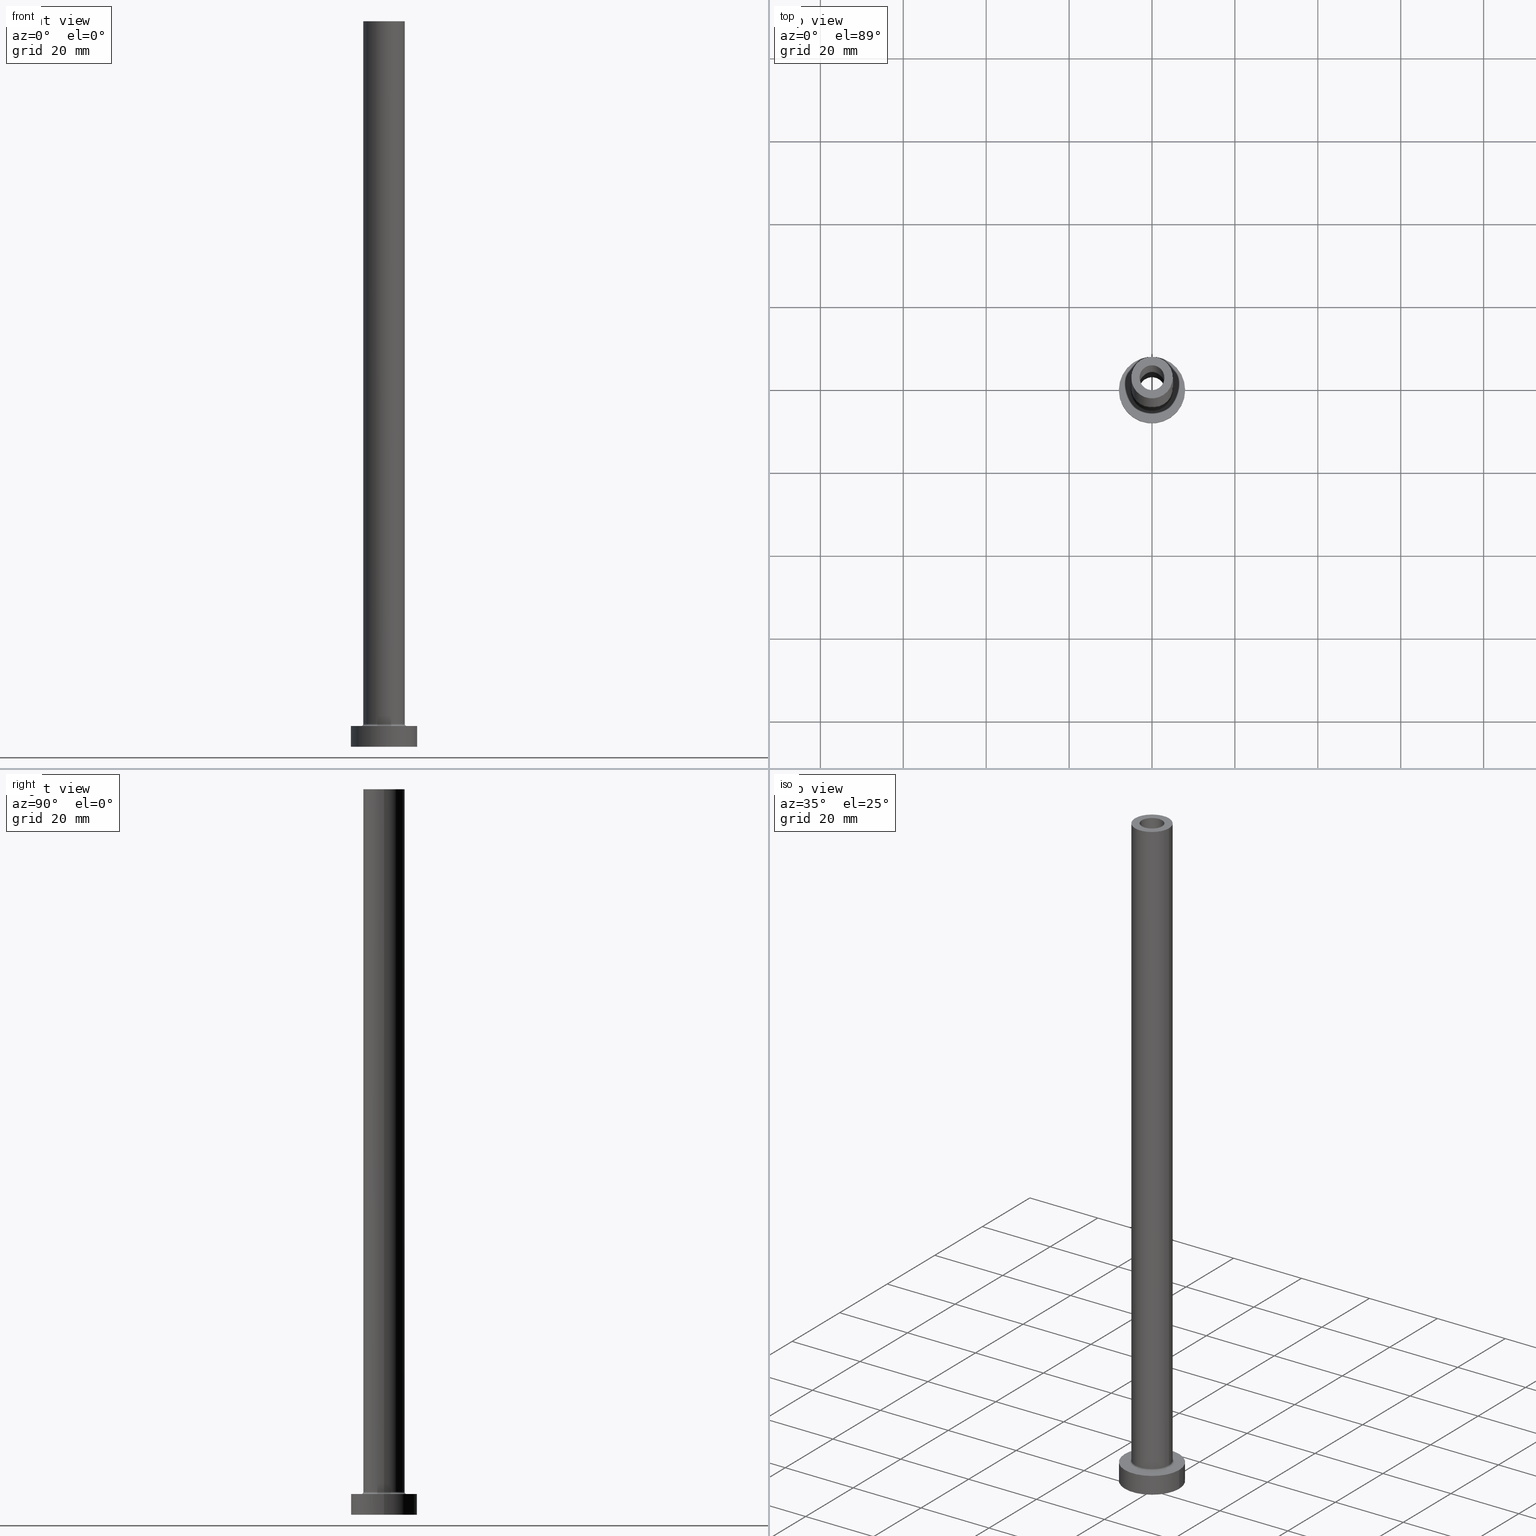
[diagram: canonical four-view strip — front | top / right | iso, engineering-drawing reading convention]
A machine part, canonical four-view strip (front | top / right | iso — engineering-drawing reading convention). The complete STEP part file that produces these views, byte-faithful:
ISO-10303-21;
HEADER;
FILE_DESCRIPTION (( 'STEP AP203' ),
    '1' );
FILE_NAME ('615d.STEP',
    '2023-02-13T15:32:14',
    ( '' ),
    ( '' ),
    'SwSTEP 2.0',
    'SolidWorks 2019',
    '' );
FILE_SCHEMA (( 'CONFIG_CONTROL_DESIGN' ));
ENDSEC;

DATA;
#1 = CIRCLE ( 'NONE', #410, 3.000000000000000444 ) ;
#2 = EDGE_CURVE ( 'NONE', #266, #255, #324, .T. ) ;
#3 = MANIFOLD_SOLID_BREP ( 'Odebrat vysunut�m4', #19 ) ;
#4 = FACE_OUTER_BOUND ( 'NONE', #61, .T. ) ;
#5 = DIRECTION ( 'NONE',  ( -0.000000000000000000, -0.000000000000000000, -1.000000000000000000 ) ) ;
#6 = COORDINATED_UNIVERSAL_TIME_OFFSET ( 1, 0, .AHEAD. ) ;
#7 = AXIS2_PLACEMENT_3D ( 'NONE', #325, #461, #214 ) ;
#8 = CARTESIAN_POINT ( 'NONE',  ( 5.500000000000000000, 0.000000000000000000, 5.000000000000002665 ) ) ;
#9 = APPROVAL_ROLE ( '' ) ;
#10 = DIRECTION ( 'NONE',  ( -1.000000000000000000, 0.000000000000000000, 0.000000000000000000 ) ) ;
#11 = FACE_BOUND ( 'NONE', #186, .T. ) ;
#12 = ORIENTED_EDGE ( 'NONE', *, *, #297, .F. ) ;
#13 = CYLINDRICAL_SURFACE ( 'NONE', #153, 8.000000000000000000 ) ;
#14 = AXIS2_PLACEMENT_3D ( 'NONE', #84, #360, #148 ) ;
#15 = DIRECTION ( 'NONE',  ( 0.000000000000000000, 0.000000000000000000, 1.000000000000000000 ) ) ;
#16 = CC_DESIGN_PERSON_AND_ORGANIZATION_ASSIGNMENT ( #256, #402, ( #303 ) ) ;
#17 = AXIS2_PLACEMENT_3D ( 'NONE', #380, #230, #383 ) ;
#18 = ORIENTED_EDGE ( 'NONE', *, *, #107, .T. ) ;
#19 = CLOSED_SHELL ( 'NONE', ( #288, #103, #131, #236, #292, #31, #340, #269, #375, #147, #459, #23, #85, #314 ) ) ;
#20 = ORIENTED_EDGE ( 'NONE', *, *, #306, .T. ) ;
#21 = CARTESIAN_POINT ( 'NONE',  ( 5.000000000000000000, 6.123233995736766282E-16, 175.0000000000000284 ) ) ;
#22 = CARTESIAN_POINT ( 'NONE',  ( 0.000000000000000000, 0.000000000000000000, 0.000000000000000000 ) ) ;
#23 = ADVANCED_FACE ( 'NONE', ( #146 ), #290, .F. ) ;
#24 = VERTEX_POINT ( 'NONE', #293 ) ;
#25 = DIRECTION ( 'NONE',  ( 0.000000000000000000, 0.000000000000000000, 1.000000000000000000 ) ) ;
#26 = EDGE_LOOP ( 'NONE', ( #192, #369, #20, #232 ) ) ;
#27 = ORIENTED_EDGE ( 'NONE', *, *, #99, .T. ) ;
#28 = DIRECTION ( 'NONE',  ( 1.000000000000000000, 0.000000000000000000, -0.000000000000000000 ) ) ;
#29 = LOCAL_TIME ( 16, 32, 14.00000000000000000, #144 ) ;
#30 = CIRCLE ( 'NONE', #316, 3.150000000000000355 ) ;
#31 = ADVANCED_FACE ( 'NONE', ( #119 ), #13, .T. ) ;
#32 = VERTEX_POINT ( 'NONE', #267 ) ;
#33 = EDGE_CURVE ( 'NONE', #167, #218, #30, .T. ) ;
#34 = CIRCLE ( 'NONE', #14, 3.150000000000000355 ) ;
#35 = AXIS2_PLACEMENT_3D ( 'NONE', #155, #301, #104 ) ;
#36 = CARTESIAN_POINT ( 'NONE',  ( 8.000000000000000000, 9.797174393178825657E-16, 5.000000000000000000 ) ) ;
#37 = UNCERTAINTY_MEASURE_WITH_UNIT (LENGTH_MEASURE( 1.000000000000000082E-05 ), #142, 'distance_accuracy_value', 'NONE');
#38 = DIRECTION ( 'NONE',  ( 1.000000000000000000, 0.000000000000000000, 0.000000000000000000 ) ) ;
#39 = EDGE_LOOP ( 'NONE', ( #328, #440 ) ) ;
#40 = DIRECTION ( 'NONE',  ( 1.000000000000000000, 0.000000000000000000, 0.000000000000000000 ) ) ;
#41 = PRODUCT_RELATED_PRODUCT_CATEGORY ( 'detail', '', ( #437 ) ) ;
#42 = DIRECTION ( 'NONE',  ( 0.000000000000000000, 0.000000000000000000, 1.000000000000000000 ) ) ;
#43 = APPROVAL_PERSON_ORGANIZATION ( #265, #76, #97 ) ;
#44 = APPROVAL_ROLE ( '' ) ;
#45 = CARTESIAN_POINT ( 'NONE',  ( -5.000000000000000000, 0.000000000000000000, 175.0000000000000284 ) ) ;
#46 = PERSON_AND_ORGANIZATION_ROLE ( 'design_owner' ) ;
#47 = DIRECTION ( 'NONE',  ( 0.000000000000000000, 0.000000000000000000, 1.000000000000000000 ) ) ;
#48 = APPROVAL_STATUS ( 'not_yet_approved' ) ;
#49 = DIRECTION ( 'NONE',  ( 0.000000000000000000, 0.000000000000000000, -1.000000000000000000 ) ) ;
#50 = CARTESIAN_POINT ( 'NONE',  ( 0.000000000000000000, 0.000000000000000000, 175.0000000000000284 ) ) ;
#51 = APPROVAL_STATUS ( 'not_yet_approved' ) ;
#52 = ORIENTED_EDGE ( 'NONE', *, *, #319, .T. ) ;
#53 = DIRECTION ( 'NONE',  ( 0.000000000000000000, 0.000000000000000000, 1.000000000000000000 ) ) ;
#54 = DATE_AND_TIME ( #231, #294 ) ;
#55 = DIRECTION ( 'NONE',  ( -1.000000000000000000, 0.000000000000000000, 0.000000000000000000 ) ) ;
#56 = CARTESIAN_POINT ( 'NONE',  ( 0.000000000000000000, 0.000000000000000000, 5.000000000000000000 ) ) ;
#57 = VERTEX_POINT ( 'NONE', #412 ) ;
#58 = AXIS2_PLACEMENT_3D ( 'NONE', #287, #114, #426 ) ;
#59 = ORIENTED_EDGE ( 'NONE', *, *, #284, .T. ) ;
#60 = CARTESIAN_POINT ( 'NONE',  ( -5.000000000000000000, 0.000000000000000000, 175.0000000000000284 ) ) ;
#61 = EDGE_LOOP ( 'NONE', ( #371, #91, #163, #352 ) ) ;
#62 = FACE_OUTER_BOUND ( 'NONE', #26, .T. ) ;
#63 = CC_DESIGN_DATE_AND_TIME_ASSIGNMENT ( #393, #363, ( #414 ) ) ;
#64 = DIRECTION ( 'NONE',  ( 1.000000000000000000, 0.000000000000000000, 0.000000000000000000 ) ) ;
#65 = CC_DESIGN_PERSON_AND_ORGANIZATION_ASSIGNMENT ( #283, #145, ( #414 ) ) ;
#66 = ORIENTED_EDGE ( 'NONE', *, *, #407, .T. ) ;
#67 =( GEOMETRIC_REPRESENTATION_CONTEXT ( 3 ) GLOBAL_UNCERTAINTY_ASSIGNED_CONTEXT ( ( #37 ) ) GLOBAL_UNIT_ASSIGNED_CONTEXT ( ( #142, #78, #113 ) ) REPRESENTATION_CONTEXT ( 'NONE', 'WORKASPACE' ) );
#68 = FACE_OUTER_BOUND ( 'NONE', #406, .T. ) ;
#69 = CC_DESIGN_PERSON_AND_ORGANIZATION_ASSIGNMENT ( #222, #323, ( #303 ) ) ;
#70 = ORIENTED_EDGE ( 'NONE', *, *, #337, .T. ) ;
#71 = FACE_OUTER_BOUND ( 'NONE', #443, .T. ) ;
#72 = ORIENTED_EDGE ( 'NONE', *, *, #310, .F. ) ;
#73 = CARTESIAN_POINT ( 'NONE',  ( -8.000000000000000000, 0.000000000000000000, 5.000000000000000000 ) ) ;
#74 = AXIS2_PLACEMENT_3D ( 'NONE', #206, #424, #180 ) ;
#75 = AXIS2_PLACEMENT_3D ( 'NONE', #150, #338, #157 ) ;
#76 = APPROVAL ( #441, 'NEUR�EN�' ) ;
#77 = FACE_OUTER_BOUND ( 'NONE', #339, .T. ) ;
#78 =( NAMED_UNIT ( * ) PLANE_ANGLE_UNIT ( ) SI_UNIT ( $, .RADIAN. ) );
#79 = LINE ( 'NONE', #73, #315 ) ;
#80 = DIRECTION ( 'NONE',  ( 1.224646799147353207E-16, 1.000000000000000000, -0.000000000000000000 ) ) ;
#81 = APPROVAL_DATE_TIME ( #289, #239 ) ;
#82 = VERTEX_POINT ( 'NONE', #98 ) ;
#83 = AXIS2_PLACEMENT_3D ( 'NONE', #356, #47, #178 ) ;
#84 = CARTESIAN_POINT ( 'NONE',  ( 0.000000000000000000, 0.000000000000000000, 0.000000000000000000 ) ) ;
#85 = ADVANCED_FACE ( 'NONE', ( #11, #88 ), #296, .F. ) ;
#86 = ORIENTED_EDGE ( 'NONE', *, *, #209, .T. ) ;
#87 = CARTESIAN_POINT ( 'NONE',  ( 0.000000000000000000, 0.000000000000000000, 5.500000000000005329 ) ) ;
#88 = FACE_OUTER_BOUND ( 'NONE', #403, .T. ) ;
#89 = ORIENTED_EDGE ( 'NONE', *, *, #397, .T. ) ;
#90 = PERSON_AND_ORGANIZATION ( #135, #120 ) ;
#91 = ORIENTED_EDGE ( 'NONE', *, *, #268, .T. ) ;
#92 = CARTESIAN_POINT ( 'NONE',  ( 0.000000000000000000, 0.000000000000000000, 5.000000000000000000 ) ) ;
#93 = AXIS2_PLACEMENT_3D ( 'NONE', #420, #372, #336 ) ;
#94 = DATE_AND_TIME ( #367, #438 ) ;
#95 = EDGE_LOOP ( 'NONE', ( #298, #302, #89, #273 ) ) ;
#96 = CC_DESIGN_PERSON_AND_ORGANIZATION_ASSIGNMENT ( #90, #221, ( #379 ) ) ;
#97 = APPROVAL_ROLE ( '' ) ;
#98 = CARTESIAN_POINT ( 'NONE',  ( -5.500000000000000000, 6.735557395310442023E-16, 5.000000000000002665 ) ) ;
#99 = EDGE_CURVE ( 'NONE', #202, #57, #112, .T. ) ;
#100 = CC_DESIGN_APPROVAL ( #76, ( #379 ) ) ;
#101 = CC_DESIGN_PERSON_AND_ORGANIZATION_ASSIGNMENT ( #327, #46, ( #437 ) ) ;
#102 = CARTESIAN_POINT ( 'NONE',  ( 3.150000000000000355, 3.857637417314163182E-16, 138.9095454429505310 ) ) ;
#103 = ADVANCED_FACE ( 'NONE', ( #77 ), #286, .F. ) ;
#104 = DIRECTION ( 'NONE',  ( -1.000000000000000000, 0.000000000000000000, 0.000000000000000000 ) ) ;
#105 = ORIENTED_EDGE ( 'NONE', *, *, #319, .F. ) ;
#106 = VECTOR ( 'NONE', #244, 1000.000000000000000 ) ;
#107 = EDGE_CURVE ( 'NONE', #255, #167, #189, .T. ) ;
#108 = CARTESIAN_POINT ( 'NONE',  ( -3.000000000000000444, 0.000000000000000000, 175.0000000000000284 ) ) ;
#109 = ORIENTED_EDGE ( 'NONE', *, *, #33, .T. ) ;
#110 = CARTESIAN_POINT ( 'NONE',  ( 8.000000000000000000, 9.797174393178825657E-16, 5.000000000000000000 ) ) ;
#111 = VECTOR ( 'NONE', #213, 1000.000000000000000 ) ;
#112 = CIRCLE ( 'NONE', #334, 8.000000000000000000 ) ;
#113 =( NAMED_UNIT ( * ) SI_UNIT ( $, .STERADIAN. ) SOLID_ANGLE_UNIT ( ) );
#114 = DIRECTION ( 'NONE',  ( 0.000000000000000000, -1.000000000000000000, 0.000000000000000000 ) ) ;
#115 = DIRECTION ( 'NONE',  ( -0.000000000000000000, -0.000000000000000000, -1.000000000000000000 ) ) ;
#116 = LINE ( 'NONE', #110, #308 ) ;
#117 = CARTESIAN_POINT ( 'NONE',  ( 0.000000000000000000, 0.000000000000000000, 138.9095454429505310 ) ) ;
#118 = APPROVAL_DATE_TIME ( #184, #274 ) ;
#119 = FACE_OUTER_BOUND ( 'NONE', #95, .T. ) ;
#120 = ORGANIZATION ( 'NEUR�EN�', 'NEUR�EN�', '' ) ;
#121 = FACE_OUTER_BOUND ( 'NONE', #460, .T. ) ;
#122 = DIRECTION ( 'NONE',  ( -0.000000000000000000, -0.000000000000000000, -1.000000000000000000 ) ) ;
#123 = ORIENTED_EDGE ( 'NONE', *, *, #175, .T. ) ;
#124 = CARTESIAN_POINT ( 'NONE',  ( 0.000000000000000000, 0.000000000000000000, 130.0000000000000000 ) ) ;
#125 = VERTEX_POINT ( 'NONE', #439 ) ;
#126 = ORIENTED_EDGE ( 'NONE', *, *, #107, .F. ) ;
#127 = CARTESIAN_POINT ( 'NONE',  ( 0.000000000000000000, 0.000000000000000000, 5.500000000000005329 ) ) ;
#128 = CIRCLE ( 'NONE', #258, 8.000000000000000000 ) ;
#129 = COORDINATED_UNIVERSAL_TIME_OFFSET ( 1, 0, .AHEAD. ) ;
#130 = EDGE_LOOP ( 'NONE', ( #233, #326, #18, #109 ) ) ;
#131 = ADVANCED_FACE ( 'NONE', ( #121 ), #165, .F. ) ;
#132 = CIRCLE ( 'NONE', #201, 5.000000000000000000 ) ;
#133 = DIRECTION ( 'NONE',  ( 1.000000000000000000, 0.000000000000000000, 0.000000000000000000 ) ) ;
#134 = CYLINDRICAL_SURFACE ( 'NONE', #35, 8.000000000000000000 ) ;
#135 = PERSON ( 'NEUR�EN�', 'NEUR�EN�', 'NEUR�EN�', ('NEUR�EN�'), ('NEUR�EN�'), ('NEUR�EN�') ) ;
#136 = APPROVAL_PERSON_ORGANIZATION ( #212, #239, #44 ) ;
#137 = CARTESIAN_POINT ( 'NONE',  ( 5.000000000000000000, 6.123233995736766282E-16, 5.500000000000005329 ) ) ;
#138 = DIRECTION ( 'NONE',  ( 0.000000000000000000, 0.000000000000000000, 1.000000000000000000 ) ) ;
#139 = EDGE_CURVE ( 'NONE', #154, #82, #229, .T. ) ;
#140 = FACE_OUTER_BOUND ( 'NONE', #411, .T. ) ;
#141 = APPLICATION_PROTOCOL_DEFINITION ( 'international standard', 'config_control_design', 1994, #366 ) ;
#142 =( LENGTH_UNIT ( ) NAMED_UNIT ( * ) SI_UNIT ( .MILLI., .METRE. ) );
#143 = CARTESIAN_POINT ( 'NONE',  ( -5.000000000000000000, 0.000000000000000000, 5.500000000000005329 ) ) ;
#144 = COORDINATED_UNIVERSAL_TIME_OFFSET ( 1, 0, .AHEAD. ) ;
#145 = PERSON_AND_ORGANIZATION_ROLE ( 'creator' ) ;
#146 = FACE_OUTER_BOUND ( 'NONE', #130, .T. ) ;
#147 = ADVANCED_FACE ( 'NONE', ( #207, #422 ), #171, .T. ) ;
#148 = DIRECTION ( 'NONE',  ( 1.000000000000000000, 0.000000000000000000, 0.000000000000000000 ) ) ;
#149 = DIRECTION ( 'NONE',  ( 0.000000000000000000, 0.000000000000000000, -1.000000000000000000 ) ) ;
#150 = CARTESIAN_POINT ( 'NONE',  ( 0.000000000000000000, 0.000000000000000000, 130.0000000000000000 ) ) ;
#151 = AXIS2_PLACEMENT_3D ( 'NONE', #275, #418, #458 ) ;
#152 = DIRECTION ( 'NONE',  ( 0.000000000000000000, 0.000000000000000000, 1.000000000000000000 ) ) ;
#153 = AXIS2_PLACEMENT_3D ( 'NONE', #56, #122, #260 ) ;
#154 = VERTEX_POINT ( 'NONE', #8 ) ;
#155 = CARTESIAN_POINT ( 'NONE',  ( 0.000000000000000000, 0.000000000000000000, 5.000000000000000000 ) ) ;
#156 = CC_DESIGN_DATE_AND_TIME_ASSIGNMENT ( #94, #432, ( #379 ) ) ;
#157 = DIRECTION ( 'NONE',  ( 1.000000000000000000, 0.000000000000000000, 0.000000000000000000 ) ) ;
#158 = FACE_OUTER_BOUND ( 'NONE', #451, .T. ) ;
#159 = VERTEX_POINT ( 'NONE', #143 ) ;
#160 = FACE_OUTER_BOUND ( 'NONE', #357, .T. ) ;
#161 = AXIS2_PLACEMENT_3D ( 'NONE', #124, #413, #133 ) ;
#162 = EDGE_CURVE ( 'NONE', #246, #417, #285, .T. ) ;
#163 = ORIENTED_EDGE ( 'NONE', *, *, #442, .T. ) ;
#164 = AXIS2_PLACEMENT_3D ( 'NONE', #312, #25, #28 ) ;
#165 = TOROIDAL_SURFACE ( 'NONE', #382, 5.500000000000000000, 0.5000000000000000000 ) ;
#166 = DIRECTION ( 'NONE',  ( 0.000000000000000000, 0.000000000000000000, -1.000000000000000000 ) ) ;
#167 = VERTEX_POINT ( 'NONE', #252 ) ;
#168 = EDGE_CURVE ( 'NONE', #159, #82, #448, .T. ) ;
#169 = CARTESIAN_POINT ( 'NONE',  ( -3.000000000000000444, 0.000000000000000000, 130.0000000000000000 ) ) ;
#170 = EDGE_CURVE ( 'NONE', #218, #167, #34, .T. ) ;
#171 = PLANE ( 'NONE',  #241 ) ;
#172 = ORIENTED_EDGE ( 'NONE', *, *, #378, .T. ) ;
#173 = CIRCLE ( 'NONE', #322, 3.000000000000000444 ) ;
#174 = DIRECTION ( 'NONE',  ( 0.000000000000000000, 0.000000000000000000, 1.000000000000000000 ) ) ;
#175 = EDGE_CURVE ( 'NONE', #246, #423, #270, .T. ) ;
#176 = CYLINDRICAL_SURFACE ( 'NONE', #74, 5.000000000000000000 ) ;
#177 = CC_DESIGN_SECURITY_CLASSIFICATION ( #379, ( #303 ) ) ;
#178 = DIRECTION ( 'NONE',  ( 1.000000000000000000, 0.000000000000000000, 0.000000000000000000 ) ) ;
#179 = PERSON_AND_ORGANIZATION ( #135, #120 ) ;
#180 = DIRECTION ( 'NONE',  ( -1.000000000000000000, 0.000000000000000000, 0.000000000000000000 ) ) ;
#181 = CC_DESIGN_APPROVAL ( #239, ( #414 ) ) ;
#182 = AXIS2_PLACEMENT_3D ( 'NONE', #404, #204, #40 ) ;
#183 = DIRECTION ( 'NONE',  ( 1.000000000000000000, 0.000000000000000000, -0.000000000000000000 ) ) ;
#184 = DATE_AND_TIME ( #429, #29 ) ;
#185 = EDGE_CURVE ( 'NONE', #32, #228, #193, .T. ) ;
#186 = EDGE_LOOP ( 'NONE', ( #59, #172 ) ) ;
#187 = DIRECTION ( 'NONE',  ( 1.000000000000000000, 0.000000000000000000, 0.000000000000000000 ) ) ;
#188 = SHAPE_DEFINITION_REPRESENTATION ( #219, #259 ) ;
#189 = LINE ( 'NONE', #329, #389 ) ;
#190 = ORIENTED_EDGE ( 'NONE', *, *, #284, .F. ) ;
#191 = CARTESIAN_POINT ( 'NONE',  ( -5.500000000000000000, 6.735557395310442023E-16, 5.500000000000005329 ) ) ;
#192 = ORIENTED_EDGE ( 'NONE', *, *, #175, .F. ) ;
#193 = CIRCLE ( 'NONE', #454, 8.000000000000000000 ) ;
#194 = AXIS2_PLACEMENT_3D ( 'NONE', #278, #49, #10 ) ;
#195 = PLANE ( 'NONE',  #164 ) ;
#196 = CARTESIAN_POINT ( 'NONE',  ( 0.000000000000000000, 0.000000000000000000, 130.0000000000000000 ) ) ;
#197 = VERTEX_POINT ( 'NONE', #291 ) ;
#198 = DIRECTION ( 'NONE',  ( -0.000000000000000000, -0.000000000000000000, -1.000000000000000000 ) ) ;
#199 = ORIENTED_EDGE ( 'NONE', *, *, #337, .F. ) ;
#200 = FACE_BOUND ( 'NONE', #373, .T. ) ;
#201 = AXIS2_PLACEMENT_3D ( 'NONE', #87, #152, #295 ) ;
#202 = VERTEX_POINT ( 'NONE', #435 ) ;
#203 = CIRCLE ( 'NONE', #7, 3.150000000000000355 ) ;
#204 = DIRECTION ( 'NONE',  ( -0.000000000000000000, -0.000000000000000000, -1.000000000000000000 ) ) ;
#205 = ORIENTED_EDGE ( 'NONE', *, *, #251, .T. ) ;
#206 = CARTESIAN_POINT ( 'NONE',  ( 0.000000000000000000, 0.000000000000000000, 175.0000000000000284 ) ) ;
#207 = FACE_BOUND ( 'NONE', #39, .T. ) ;
#208 = ORIENTED_EDGE ( 'NONE', *, *, #33, .F. ) ;
#209 = EDGE_CURVE ( 'NONE', #159, #417, #132, .T. ) ;
#210 = PLANE ( 'NONE',  #345 ) ;
#211 = AXIS2_PLACEMENT_3D ( 'NONE', #191, #80, #216 ) ;
#212 = PERSON_AND_ORGANIZATION ( #135, #120 ) ;
#213 = DIRECTION ( 'NONE',  ( 0.000000000000000000, 0.000000000000000000, -1.000000000000000000 ) ) ;
#214 = DIRECTION ( 'NONE',  ( 1.000000000000000000, 0.000000000000000000, 0.000000000000000000 ) ) ;
#215 = CARTESIAN_POINT ( 'NONE',  ( 0.000000000000000000, 0.000000000000000000, 175.0000000000000284 ) ) ;
#216 = DIRECTION ( 'NONE',  ( -1.000000000000000000, 1.224646799147351482E-16, 0.000000000000000000 ) ) ;
#217 = APPLICATION_PROTOCOL_DEFINITION ( 'international standard', 'config_control_design', 1994, #243 ) ;
#218 = VERTEX_POINT ( 'NONE', #234 ) ;
#219 = PRODUCT_DEFINITION_SHAPE ( 'NONE', 'NONE',  #414 ) ;
#220 = APPROVAL_PERSON_ORGANIZATION ( #179, #274, #9 ) ;
#221 = PERSON_AND_ORGANIZATION_ROLE ( 'classification_officer' ) ;
#222 = PERSON_AND_ORGANIZATION ( #135, #120 ) ;
#223 = CARTESIAN_POINT ( 'NONE',  ( 0.000000000000000000, 0.000000000000000000, 138.9095454429505310 ) ) ;
#224 = DIRECTION ( 'NONE',  ( 1.000000000000000000, 0.000000000000000000, -0.000000000000000000 ) ) ;
#225 = ORIENTED_EDGE ( 'NONE', *, *, #170, .T. ) ;
#226 = EDGE_CURVE ( 'NONE', #197, #24, #173, .T. ) ;
#227 = APPROVAL_DATE_TIME ( #54, #76 ) ;
#228 = VERTEX_POINT ( 'NONE', #36 ) ;
#229 = CIRCLE ( 'NONE', #182, 5.500000000000000000 ) ;
#230 = DIRECTION ( 'NONE',  ( 0.000000000000000000, 0.000000000000000000, 1.000000000000000000 ) ) ;
#231 = CALENDAR_DATE ( 2023, 13, 2 ) ;
#232 = ORIENTED_EDGE ( 'NONE', *, *, #251, .F. ) ;
#233 = ORIENTED_EDGE ( 'NONE', *, *, #262, .F. ) ;
#234 = CARTESIAN_POINT ( 'NONE',  ( 3.150000000000000355, 3.857637417314163182E-16, 0.000000000000000000 ) ) ;
#235 = CARTESIAN_POINT ( 'NONE',  ( 0.000000000000000000, 0.000000000000000000, 0.000000000000000000 ) ) ;
#236 = ADVANCED_FACE ( 'NONE', ( #62 ), #276, .T. ) ;
#237 = TOROIDAL_SURFACE ( 'NONE', #83, 5.500000000000000000, 0.5000000000000000000 ) ;
#238 = CARTESIAN_POINT ( 'NONE',  ( -3.150000000000000355, 0.000000000000000000, 130.0000000000000000 ) ) ;
#239 = APPROVAL ( #48, 'NEUR�EN�' ) ;
#240 = AXIS2_PLACEMENT_3D ( 'NONE', #447, #452, #299 ) ;
#241 = AXIS2_PLACEMENT_3D ( 'NONE', #321, #331, #224 ) ;
#242 = CARTESIAN_POINT ( 'NONE',  ( 0.000000000000000000, 0.000000000000000000, 175.0000000000000284 ) ) ;
#243 = APPLICATION_CONTEXT ( 'configuration controlled 3d designs of mechanical parts and assemblies' ) ;
#244 = DIRECTION ( 'NONE',  ( 0.000000000000000000, 0.000000000000000000, -1.000000000000000000 ) ) ;
#245 = CARTESIAN_POINT ( 'NONE',  ( 0.000000000000000000, 0.000000000000000000, 0.000000000000000000 ) ) ;
#246 = VERTEX_POINT ( 'NONE', #21 ) ;
#247 = AXIS2_PLACEMENT_3D ( 'NONE', #215, #174, #317 ) ;
#248 = DIRECTION ( 'NONE',  ( -0.000000000000000000, -0.000000000000000000, -1.000000000000000000 ) ) ;
#249 = CALENDAR_DATE ( 2023, 13, 2 ) ;
#250 = DIRECTION ( 'NONE',  ( 1.000000000000000000, 0.000000000000000000, 0.000000000000000000 ) ) ;
#251 = EDGE_CURVE ( 'NONE', #423, #159, #304, .T. ) ;
#252 = CARTESIAN_POINT ( 'NONE',  ( -3.150000000000000355, 0.000000000000000000, 0.000000000000000000 ) ) ;
#253 = DIRECTION ( 'NONE',  ( 1.000000000000000000, 0.000000000000000000, 0.000000000000000000 ) ) ;
#254 = LINE ( 'NONE', #394, #111 ) ;
#255 = VERTEX_POINT ( 'NONE', #238 ) ;
#256 = PERSON_AND_ORGANIZATION ( #135, #120 ) ;
#257 = EDGE_LOOP ( 'NONE', ( #333, #341 ) ) ;
#258 = AXIS2_PLACEMENT_3D ( 'NONE', #245, #42, #318 ) ;
#259 = ADVANCED_BREP_SHAPE_REPRESENTATION ( '615d', ( #3, #450 ), #67 ) ;
#260 = DIRECTION ( 'NONE',  ( -1.000000000000000000, 0.000000000000000000, 0.000000000000000000 ) ) ;
#261 = ORIENTED_EDGE ( 'NONE', *, *, #407, .F. ) ;
#262 = EDGE_CURVE ( 'NONE', #266, #218, #346, .T. ) ;
#263 = ORIENTED_EDGE ( 'NONE', *, *, #442, .F. ) ;
#264 = DIRECTION ( 'NONE',  ( 0.000000000000000000, 0.000000000000000000, 1.000000000000000000 ) ) ;
#265 = PERSON_AND_ORGANIZATION ( #135, #120 ) ;
#266 = VERTEX_POINT ( 'NONE', #457 ) ;
#267 = CARTESIAN_POINT ( 'NONE',  ( -8.000000000000000000, 0.000000000000000000, 5.000000000000000000 ) ) ;
#268 = EDGE_CURVE ( 'NONE', #24, #197, #277, .T. ) ;
#269 = ADVANCED_FACE ( 'NONE', ( #200, #444 ), #195, .F. ) ;
#270 = CIRCLE ( 'NONE', #387, 5.000000000000000000 ) ;
#271 = VECTOR ( 'NONE', #166, 1000.000000000000000 ) ;
#272 = CIRCLE ( 'NONE', #161, 3.000000000000000444 ) ;
#273 = ORIENTED_EDGE ( 'NONE', *, *, #392, .T. ) ;
#274 = APPROVAL ( #51, 'NEUR�EN�' ) ;
#275 = CARTESIAN_POINT ( 'NONE',  ( 0.000000000000000000, 0.000000000000000000, 175.0000000000000284 ) ) ;
#276 = CYLINDRICAL_SURFACE ( 'NONE', #93, 5.000000000000000000 ) ;
#277 = CIRCLE ( 'NONE', #17, 3.000000000000000444 ) ;
#278 = CARTESIAN_POINT ( 'NONE',  ( 0.000000000000000000, 0.000000000000000000, 175.0000000000000284 ) ) ;
#279 = DIRECTION ( 'NONE',  ( 0.000000000000000000, 0.000000000000000000, 1.000000000000000000 ) ) ;
#280 = DIRECTION ( 'NONE',  ( 1.000000000000000000, 0.000000000000000000, 0.000000000000000000 ) ) ;
#281 = DIRECTION ( 'NONE',  ( -0.000000000000000000, -0.000000000000000000, -1.000000000000000000 ) ) ;
#282 = CIRCLE ( 'NONE', #240, 8.000000000000000000 ) ;
#283 = PERSON_AND_ORGANIZATION ( #135, #120 ) ;
#284 = EDGE_CURVE ( 'NONE', #350, #125, #272, .T. ) ;
#285 = LINE ( 'NONE', #427, #436 ) ;
#286 = CYLINDRICAL_SURFACE ( 'NONE', #456, 3.150000000000000355 ) ;
#287 = CARTESIAN_POINT ( 'NONE',  ( 5.500000000000000000, 0.000000000000000000, 5.500000000000005329 ) ) ;
#288 = ADVANCED_FACE ( 'NONE', ( #158 ), #374, .F. ) ;
#289 = DATE_AND_TIME ( #249, #421 ) ;
#290 = CYLINDRICAL_SURFACE ( 'NONE', #335, 3.150000000000000355 ) ;
#291 = CARTESIAN_POINT ( 'NONE',  ( -3.000000000000000444, 0.000000000000000000, 175.0000000000000284 ) ) ;
#292 = ADVANCED_FACE ( 'NONE', ( #160 ), #134, .T. ) ;
#293 = CARTESIAN_POINT ( 'NONE',  ( 3.000000000000000444, 3.673940397442060361E-16, 175.0000000000000284 ) ) ;
#294 = LOCAL_TIME ( 16, 32, 14.00000000000000000, #409 ) ;
#295 = DIRECTION ( 'NONE',  ( 1.000000000000000000, 0.000000000000000000, 0.000000000000000000 ) ) ;
#296 = PLANE ( 'NONE',  #309 ) ;
#297 = EDGE_CURVE ( 'NONE', #228, #32, #282, .T. ) ;
#298 = ORIENTED_EDGE ( 'NONE', *, *, #343, .F. ) ;
#299 = DIRECTION ( 'NONE',  ( 1.000000000000000000, 0.000000000000000000, 0.000000000000000000 ) ) ;
#300 = ORIENTED_EDGE ( 'NONE', *, *, #99, .F. ) ;
#301 = DIRECTION ( 'NONE',  ( -0.000000000000000000, -0.000000000000000000, -1.000000000000000000 ) ) ;
#302 = ORIENTED_EDGE ( 'NONE', *, *, #185, .F. ) ;
#303 = PRODUCT_DEFINITION_FORMATION_WITH_SPECIFIED_SOURCE ( 'LIBOVOLN�', '', #437, .NOT_KNOWN. ) ;
#304 = LINE ( 'NONE', #60, #351 ) ;
#305 = CARTESIAN_POINT ( 'NONE',  ( 0.000000000000000000, 0.000000000000000000, 5.500000000000005329 ) ) ;
#306 = EDGE_CURVE ( 'NONE', #417, #159, #388, .T. ) ;
#307 = ORIENTED_EDGE ( 'NONE', *, *, #168, .T. ) ;
#308 = VECTOR ( 'NONE', #5, 1000.000000000000000 ) ;
#309 = AXIS2_PLACEMENT_3D ( 'NONE', #196, #362, #183 ) ;
#310 = EDGE_CURVE ( 'NONE', #82, #154, #332, .T. ) ;
#311 = ORIENTED_EDGE ( 'NONE', *, *, #226, .T. ) ;
#312 = CARTESIAN_POINT ( 'NONE',  ( 0.000000000000000000, 0.000000000000000000, 0.000000000000000000 ) ) ;
#313 = FACE_BOUND ( 'NONE', #257, .T. ) ;
#314 = ADVANCED_FACE ( 'NONE', ( #4 ), #430, .F. ) ;
#315 = VECTOR ( 'NONE', #248, 1000.000000000000000 ) ;
#316 = AXIS2_PLACEMENT_3D ( 'NONE', #235, #377, #64 ) ;
#317 = DIRECTION ( 'NONE',  ( 1.000000000000000000, 0.000000000000000000, 0.000000000000000000 ) ) ;
#318 = DIRECTION ( 'NONE',  ( 1.000000000000000000, 0.000000000000000000, 0.000000000000000000 ) ) ;
#319 = EDGE_CURVE ( 'NONE', #423, #246, #398, .T. ) ;
#320 = CARTESIAN_POINT ( 'NONE',  ( 0.000000000000000000, 0.000000000000000000, 0.000000000000000000 ) ) ;
#321 = CARTESIAN_POINT ( 'NONE',  ( 0.000000000000000000, 0.000000000000000000, 175.0000000000000284 ) ) ;
#322 = AXIS2_PLACEMENT_3D ( 'NONE', #242, #344, #381 ) ;
#323 = PERSON_AND_ORGANIZATION_ROLE ( 'design_supplier' ) ;
#324 = CIRCLE ( 'NONE', #75, 3.150000000000000355 ) ;
#325 = CARTESIAN_POINT ( 'NONE',  ( 0.000000000000000000, 0.000000000000000000, 130.0000000000000000 ) ) ;
#326 = ORIENTED_EDGE ( 'NONE', *, *, #2, .T. ) ;
#327 = PERSON_AND_ORGANIZATION ( #135, #120 ) ;
#328 = ORIENTED_EDGE ( 'NONE', *, *, #226, .F. ) ;
#329 = CARTESIAN_POINT ( 'NONE',  ( -3.150000000000000355, 0.000000000000000000, 138.9095454429505310 ) ) ;
#330 = ORIENTED_EDGE ( 'NONE', *, *, #297, .T. ) ;
#331 = DIRECTION ( 'NONE',  ( 0.000000000000000000, 0.000000000000000000, 1.000000000000000000 ) ) ;
#332 = CIRCLE ( 'NONE', #455, 5.500000000000000000 ) ;
#333 = ORIENTED_EDGE ( 'NONE', *, *, #139, .T. ) ;
#334 = AXIS2_PLACEMENT_3D ( 'NONE', #22, #445, #253 ) ;
#335 = AXIS2_PLACEMENT_3D ( 'NONE', #223, #368, #434 ) ;
#336 = DIRECTION ( 'NONE',  ( -1.000000000000000000, 0.000000000000000000, 0.000000000000000000 ) ) ;
#337 = EDGE_CURVE ( 'NONE', #417, #154, #370, .T. ) ;
#338 = DIRECTION ( 'NONE',  ( 0.000000000000000000, 0.000000000000000000, 1.000000000000000000 ) ) ;
#339 = EDGE_LOOP ( 'NONE', ( #66, #385, #225, #126 ) ) ;
#340 = ADVANCED_FACE ( 'NONE', ( #313, #140 ), #210, .T. ) ;
#341 = ORIENTED_EDGE ( 'NONE', *, *, #310, .T. ) ;
#342 = CC_DESIGN_APPROVAL ( #274, ( #303 ) ) ;
#343 = EDGE_CURVE ( 'NONE', #228, #202, #116, .T. ) ;
#344 = DIRECTION ( 'NONE',  ( 0.000000000000000000, 0.000000000000000000, 1.000000000000000000 ) ) ;
#345 = AXIS2_PLACEMENT_3D ( 'NONE', #349, #386, #354 ) ;
#346 = LINE ( 'NONE', #102, #271 ) ;
#347 = EDGE_LOOP ( 'NONE', ( #401, #300 ) ) ;
#348 = ORIENTED_EDGE ( 'NONE', *, *, #162, .F. ) ;
#349 = CARTESIAN_POINT ( 'NONE',  ( 0.000000000000000000, 0.000000000000000000, 5.000000000000000000 ) ) ;
#350 = VERTEX_POINT ( 'NONE', #169 ) ;
#351 = VECTOR ( 'NONE', #198, 1000.000000000000000 ) ;
#352 = ORIENTED_EDGE ( 'NONE', *, *, #378, .F. ) ;
#353 = DIRECTION ( 'NONE',  ( 0.000000000000000000, 0.000000000000000000, 1.000000000000000000 ) ) ;
#354 = DIRECTION ( 'NONE',  ( 1.000000000000000000, 0.000000000000000000, -0.000000000000000000 ) ) ;
#355 = EDGE_CURVE ( 'NONE', #24, #125, #254, .T. ) ;
#356 = CARTESIAN_POINT ( 'NONE',  ( 0.000000000000000000, 0.000000000000000000, 5.500000000000005329 ) ) ;
#357 = EDGE_LOOP ( 'NONE', ( #12, #449, #27, #425 ) ) ;
#358 = MECHANICAL_CONTEXT ( 'NONE', #243, 'mechanical' ) ;
#359 = CARTESIAN_POINT ( 'NONE',  ( 0.000000000000000000, 0.000000000000000000, 130.0000000000000000 ) ) ;
#360 = DIRECTION ( 'NONE',  ( -0.000000000000000000, -0.000000000000000000, -1.000000000000000000 ) ) ;
#361 = LOCAL_TIME ( 16, 32, 14.00000000000000000, #433 ) ;
#362 = DIRECTION ( 'NONE',  ( 0.000000000000000000, 0.000000000000000000, 1.000000000000000000 ) ) ;
#363 = DATE_TIME_ROLE ( 'creation_date' ) ;
#364 = ORIENTED_EDGE ( 'NONE', *, *, #355, .T. ) ;
#365 = DIRECTION ( 'NONE',  ( 1.000000000000000000, 0.000000000000000000, 0.000000000000000000 ) ) ;
#366 = APPLICATION_CONTEXT ( 'configuration controlled 3d designs of mechanical parts and assemblies' ) ;
#367 = CALENDAR_DATE ( 2023, 13, 2 ) ;
#368 = DIRECTION ( 'NONE',  ( 0.000000000000000000, 0.000000000000000000, -1.000000000000000000 ) ) ;
#369 = ORIENTED_EDGE ( 'NONE', *, *, #162, .T. ) ;
#370 = CIRCLE ( 'NONE', #58, 0.5000000000000004441 ) ;
#371 = ORIENTED_EDGE ( 'NONE', *, *, #355, .F. ) ;
#372 = DIRECTION ( 'NONE',  ( -0.000000000000000000, -0.000000000000000000, -1.000000000000000000 ) ) ;
#373 = EDGE_LOOP ( 'NONE', ( #208, #405 ) ) ;
#374 = CYLINDRICAL_SURFACE ( 'NONE', #151, 3.000000000000000444 ) ;
#375 = ADVANCED_FACE ( 'NONE', ( #68 ), #176, .T. ) ;
#376 = ORIENTED_EDGE ( 'NONE', *, *, #2, .F. ) ;
#377 = DIRECTION ( 'NONE',  ( -0.000000000000000000, -0.000000000000000000, -1.000000000000000000 ) ) ;
#378 = EDGE_CURVE ( 'NONE', #125, #350, #1, .T. ) ;
#379 = SECURITY_CLASSIFICATION ( '', '', #399 ) ;
#380 = CARTESIAN_POINT ( 'NONE',  ( 0.000000000000000000, 0.000000000000000000, 175.0000000000000284 ) ) ;
#381 = DIRECTION ( 'NONE',  ( 1.000000000000000000, 0.000000000000000000, 0.000000000000000000 ) ) ;
#382 = AXIS2_PLACEMENT_3D ( 'NONE', #305, #279, #38 ) ;
#383 = DIRECTION ( 'NONE',  ( 1.000000000000000000, 0.000000000000000000, 0.000000000000000000 ) ) ;
#384 = DESIGN_CONTEXT ( 'detailed design', #366, 'design' ) ;
#385 = ORIENTED_EDGE ( 'NONE', *, *, #262, .T. ) ;
#386 = DIRECTION ( 'NONE',  ( 0.000000000000000000, 0.000000000000000000, 1.000000000000000000 ) ) ;
#387 = AXIS2_PLACEMENT_3D ( 'NONE', #50, #15, #365 ) ;
#388 = CIRCLE ( 'NONE', #415, 5.000000000000000000 ) ;
#389 = VECTOR ( 'NONE', #149, 1000.000000000000000 ) ;
#390 = DIRECTION ( 'NONE',  ( 1.000000000000000000, 0.000000000000000000, 0.000000000000000000 ) ) ;
#391 = LINE ( 'NONE', #108, #106 ) ;
#392 = EDGE_CURVE ( 'NONE', #57, #202, #128, .T. ) ;
#393 = DATE_AND_TIME ( #395, #361 ) ;
#394 = CARTESIAN_POINT ( 'NONE',  ( 3.000000000000000444, 3.673940397442060361E-16, 175.0000000000000284 ) ) ;
#395 = CALENDAR_DATE ( 2023, 13, 2 ) ;
#396 = ORIENTED_EDGE ( 'NONE', *, *, #209, .F. ) ;
#397 = EDGE_CURVE ( 'NONE', #32, #57, #79, .T. ) ;
#398 = CIRCLE ( 'NONE', #247, 5.000000000000000000 ) ;
#399 = SECURITY_CLASSIFICATION_LEVEL ( 'unclassified' ) ;
#400 = DIRECTION ( 'NONE',  ( 0.000000000000000000, 0.000000000000000000, -1.000000000000000000 ) ) ;
#401 = ORIENTED_EDGE ( 'NONE', *, *, #392, .F. ) ;
#402 = PERSON_AND_ORGANIZATION_ROLE ( 'creator' ) ;
#403 = EDGE_LOOP ( 'NONE', ( #261, #376 ) ) ;
#404 = CARTESIAN_POINT ( 'NONE',  ( 0.000000000000000000, 0.000000000000000000, 5.000000000000000000 ) ) ;
#405 = ORIENTED_EDGE ( 'NONE', *, *, #170, .F. ) ;
#406 = EDGE_LOOP ( 'NONE', ( #348, #105, #205, #86 ) ) ;
#407 = EDGE_CURVE ( 'NONE', #255, #266, #203, .T. ) ;
#408 = DIRECTION ( 'NONE',  ( 1.000000000000000000, 0.000000000000000000, 0.000000000000000000 ) ) ;
#409 = COORDINATED_UNIVERSAL_TIME_OFFSET ( 1, 0, .AHEAD. ) ;
#410 = AXIS2_PLACEMENT_3D ( 'NONE', #359, #138, #280 ) ;
#411 = EDGE_LOOP ( 'NONE', ( #419, #330 ) ) ;
#412 = CARTESIAN_POINT ( 'NONE',  ( -8.000000000000000000, 0.000000000000000000, 0.000000000000000000 ) ) ;
#413 = DIRECTION ( 'NONE',  ( 0.000000000000000000, 0.000000000000000000, 1.000000000000000000 ) ) ;
#414 = PRODUCT_DEFINITION ( 'NEZN�M�', '', #303, #384 ) ;
#415 = AXIS2_PLACEMENT_3D ( 'NONE', #127, #264, #408 ) ;
#416 = EDGE_LOOP ( 'NONE', ( #52, #123 ) ) ;
#417 = VERTEX_POINT ( 'NONE', #137 ) ;
#418 = DIRECTION ( 'NONE',  ( 0.000000000000000000, 0.000000000000000000, -1.000000000000000000 ) ) ;
#419 = ORIENTED_EDGE ( 'NONE', *, *, #185, .T. ) ;
#420 = CARTESIAN_POINT ( 'NONE',  ( 0.000000000000000000, 0.000000000000000000, 175.0000000000000284 ) ) ;
#421 = LOCAL_TIME ( 16, 32, 14.00000000000000000, #6 ) ;
#422 = FACE_OUTER_BOUND ( 'NONE', #416, .T. ) ;
#423 = VERTEX_POINT ( 'NONE', #45 ) ;
#424 = DIRECTION ( 'NONE',  ( -0.000000000000000000, -0.000000000000000000, -1.000000000000000000 ) ) ;
#425 = ORIENTED_EDGE ( 'NONE', *, *, #397, .F. ) ;
#426 = DIRECTION ( 'NONE',  ( 0.000000000000000000, 0.000000000000000000, -1.000000000000000000 ) ) ;
#427 = CARTESIAN_POINT ( 'NONE',  ( 5.000000000000000000, 6.123233995736766282E-16, 175.0000000000000284 ) ) ;
#428 = ORIENTED_EDGE ( 'NONE', *, *, #168, .F. ) ;
#429 = CALENDAR_DATE ( 2023, 13, 2 ) ;
#430 = CYLINDRICAL_SURFACE ( 'NONE', #194, 3.000000000000000444 ) ;
#431 = CARTESIAN_POINT ( 'NONE',  ( 0.000000000000000000, 0.000000000000000000, 5.000000000000000000 ) ) ;
#432 = DATE_TIME_ROLE ( 'classification_date' ) ;
#433 = COORDINATED_UNIVERSAL_TIME_OFFSET ( 1, 0, .AHEAD. ) ;
#434 = DIRECTION ( 'NONE',  ( -1.000000000000000000, 0.000000000000000000, 0.000000000000000000 ) ) ;
#435 = CARTESIAN_POINT ( 'NONE',  ( 8.000000000000000000, 9.797174393178825657E-16, 0.000000000000000000 ) ) ;
#436 = VECTOR ( 'NONE', #115, 1000.000000000000000 ) ;
#437 = PRODUCT ( '615d', '615d', '', ( #358 ) ) ;
#438 = LOCAL_TIME ( 16, 32, 14.00000000000000000, #129 ) ;
#439 = CARTESIAN_POINT ( 'NONE',  ( 3.000000000000000444, 3.673940397442060361E-16, 130.0000000000000000 ) ) ;
#440 = ORIENTED_EDGE ( 'NONE', *, *, #268, .F. ) ;
#441 = APPROVAL_STATUS ( 'not_yet_approved' ) ;
#442 = EDGE_CURVE ( 'NONE', #197, #350, #391, .T. ) ;
#443 = EDGE_LOOP ( 'NONE', ( #428, #446, #70, #72 ) ) ;
#444 = FACE_OUTER_BOUND ( 'NONE', #347, .T. ) ;
#445 = DIRECTION ( 'NONE',  ( 0.000000000000000000, 0.000000000000000000, 1.000000000000000000 ) ) ;
#446 = ORIENTED_EDGE ( 'NONE', *, *, #306, .F. ) ;
#447 = CARTESIAN_POINT ( 'NONE',  ( 0.000000000000000000, 0.000000000000000000, 5.000000000000000000 ) ) ;
#448 = CIRCLE ( 'NONE', #211, 0.5000000000000004441 ) ;
#449 = ORIENTED_EDGE ( 'NONE', *, *, #343, .T. ) ;
#450 = AXIS2_PLACEMENT_3D ( 'NONE', #320, #353, #390 ) ;
#451 = EDGE_LOOP ( 'NONE', ( #311, #364, #190, #263 ) ) ;
#452 = DIRECTION ( 'NONE',  ( 0.000000000000000000, 0.000000000000000000, 1.000000000000000000 ) ) ;
#453 = ORIENTED_EDGE ( 'NONE', *, *, #139, .F. ) ;
#454 = AXIS2_PLACEMENT_3D ( 'NONE', #431, #53, #187 ) ;
#455 = AXIS2_PLACEMENT_3D ( 'NONE', #92, #281, #250 ) ;
#456 = AXIS2_PLACEMENT_3D ( 'NONE', #117, #400, #55 ) ;
#457 = CARTESIAN_POINT ( 'NONE',  ( 3.150000000000000355, 3.857637417314163182E-16, 130.0000000000000000 ) ) ;
#458 = DIRECTION ( 'NONE',  ( -1.000000000000000000, 0.000000000000000000, 0.000000000000000000 ) ) ;
#459 = ADVANCED_FACE ( 'NONE', ( #71 ), #237, .F. ) ;
#460 = EDGE_LOOP ( 'NONE', ( #396, #307, #453, #199 ) ) ;
#461 = DIRECTION ( 'NONE',  ( 0.000000000000000000, 0.000000000000000000, 1.000000000000000000 ) ) ;
ENDSEC;
END-ISO-10303-21;
